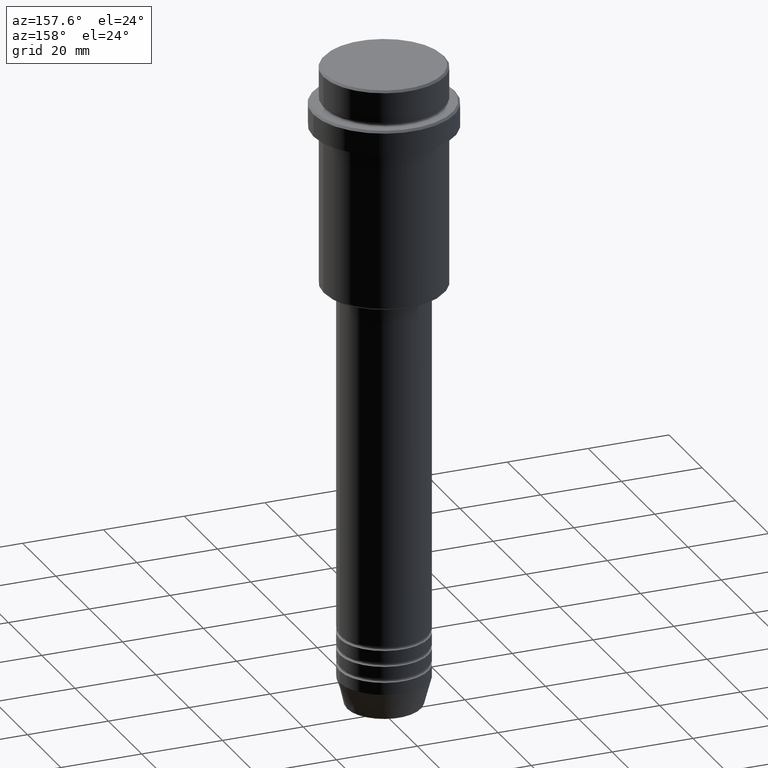
[diagram: clean part render]
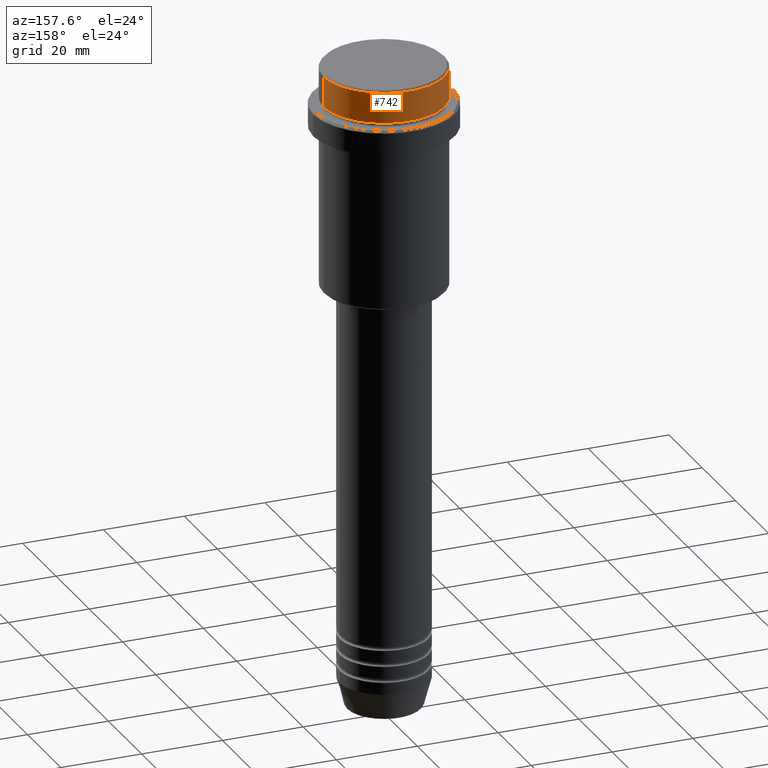
[diagram: same view with one face highlighted and labeled with its STEP entity id]
A machine part, auxiliary view. The second image highlights one B-rep face of the part: STEP entity #742.
In plain terms, the highlighted cylindrical surface (partial cylindrical patch) has radius 15 mm, axis along (-0, -0, 1).
Its self-contained STEP definition (entity closure, byte-faithful):
#3 = DIRECTION ( 'NONE',  ( -0.000000000000000000, -0.000000000000000000, 1.000000000000000000 ) ) ;
#18 = ORIENTED_EDGE ( 'NONE', *, *, #325, .F. ) ;
#136 = DIRECTION ( 'NONE',  ( 1.000000000000000000, 0.000000000000000000, 0.000000000000000000 ) ) ;
#244 = DIRECTION ( 'NONE',  ( -0.000000000000000000, -0.000000000000000000, 1.000000000000000000 ) ) ;
#312 = CARTESIAN_POINT ( 'NONE',  ( 15.00000000000000000, 0.000000000000000000, 0.000000000000000000 ) ) ;
#325 = EDGE_CURVE ( 'NONE', #1028, #809, #1295, .T. ) ;
#331 = VECTOR ( 'NONE', #244, 1000.000000000000000 ) ;
#333 = ORIENTED_EDGE ( 'NONE', *, *, #857, .T. ) ;
#374 = ORIENTED_EDGE ( 'NONE', *, *, #792, .T. ) ;
#389 = EDGE_CURVE ( 'NONE', #1310, #809, #1039, .T. ) ;
#395 = AXIS2_PLACEMENT_3D ( 'NONE', #795, #689, #136 ) ;
#445 = DIRECTION ( 'NONE',  ( -0.000000000000000000, -0.000000000000000000, 1.000000000000000000 ) ) ;
#578 = CARTESIAN_POINT ( 'NONE',  ( 0.000000000000000000, 0.000000000000000000, -7.999999999999998224 ) ) ;
#613 = CARTESIAN_POINT ( 'NONE',  ( -15.00000000000000000, 1.836970198721029589E-15, -7.999999999999998224 ) ) ;
#633 = DIRECTION ( 'NONE',  ( -0.000000000000000000, -0.000000000000000000, 1.000000000000000000 ) ) ;
#637 = DIRECTION ( 'NONE',  ( 1.000000000000000000, 0.000000000000000000, 0.000000000000000000 ) ) ;
#645 = LINE ( 'NONE', #800, #331 ) ;
#674 = EDGE_LOOP ( 'NONE', ( #333, #374, #1147, #18 ) ) ;
#689 = DIRECTION ( 'NONE',  ( 0.000000000000000000, 0.000000000000000000, -1.000000000000000000 ) ) ;
#742 = ADVANCED_FACE ( 'NONE', ( #959 ), #980, .T. ) ;
#779 = AXIS2_PLACEMENT_3D ( 'NONE', #578, #445, #1214 ) ;
#792 = EDGE_CURVE ( 'NONE', #993, #1310, #645, .T. ) ;
#795 = CARTESIAN_POINT ( 'NONE',  ( 0.000000000000000000, 0.000000000000000000, -0.4999999999999970024 ) ) ;
#800 = CARTESIAN_POINT ( 'NONE',  ( -15.00000000000000000, 1.836970198721029589E-15, 0.000000000000000000 ) ) ;
#809 = VERTEX_POINT ( 'NONE', #1241 ) ;
#857 = EDGE_CURVE ( 'NONE', #1028, #993, #948, .T. ) ;
#906 = CARTESIAN_POINT ( 'NONE',  ( -15.00000000000000000, 1.836970198721029589E-15, -0.4999999999999970024 ) ) ;
#945 = VECTOR ( 'NONE', #633, 1000.000000000000000 ) ;
#948 = CIRCLE ( 'NONE', #779, 15.00000000000000000 ) ;
#959 = FACE_OUTER_BOUND ( 'NONE', #674, .T. ) ;
#977 = CARTESIAN_POINT ( 'NONE',  ( 0.000000000000000000, 0.000000000000000000, 0.000000000000000000 ) ) ;
#980 = CYLINDRICAL_SURFACE ( 'NONE', #1337, 15.00000000000000000 ) ;
#993 = VERTEX_POINT ( 'NONE', #613 ) ;
#1028 = VERTEX_POINT ( 'NONE', #1166 ) ;
#1039 = CIRCLE ( 'NONE', #395, 15.00000000000000000 ) ;
#1147 = ORIENTED_EDGE ( 'NONE', *, *, #389, .T. ) ;
#1166 = CARTESIAN_POINT ( 'NONE',  ( 15.00000000000000000, 0.000000000000000000, -7.999999999999998224 ) ) ;
#1214 = DIRECTION ( 'NONE',  ( 1.000000000000000000, 0.000000000000000000, 0.000000000000000000 ) ) ;
#1241 = CARTESIAN_POINT ( 'NONE',  ( 15.00000000000000000, 0.000000000000000000, -0.4999999999999970024 ) ) ;
#1295 = LINE ( 'NONE', #312, #945 ) ;
#1310 = VERTEX_POINT ( 'NONE', #906 ) ;
#1337 = AXIS2_PLACEMENT_3D ( 'NONE', #977, #3, #637 ) ;